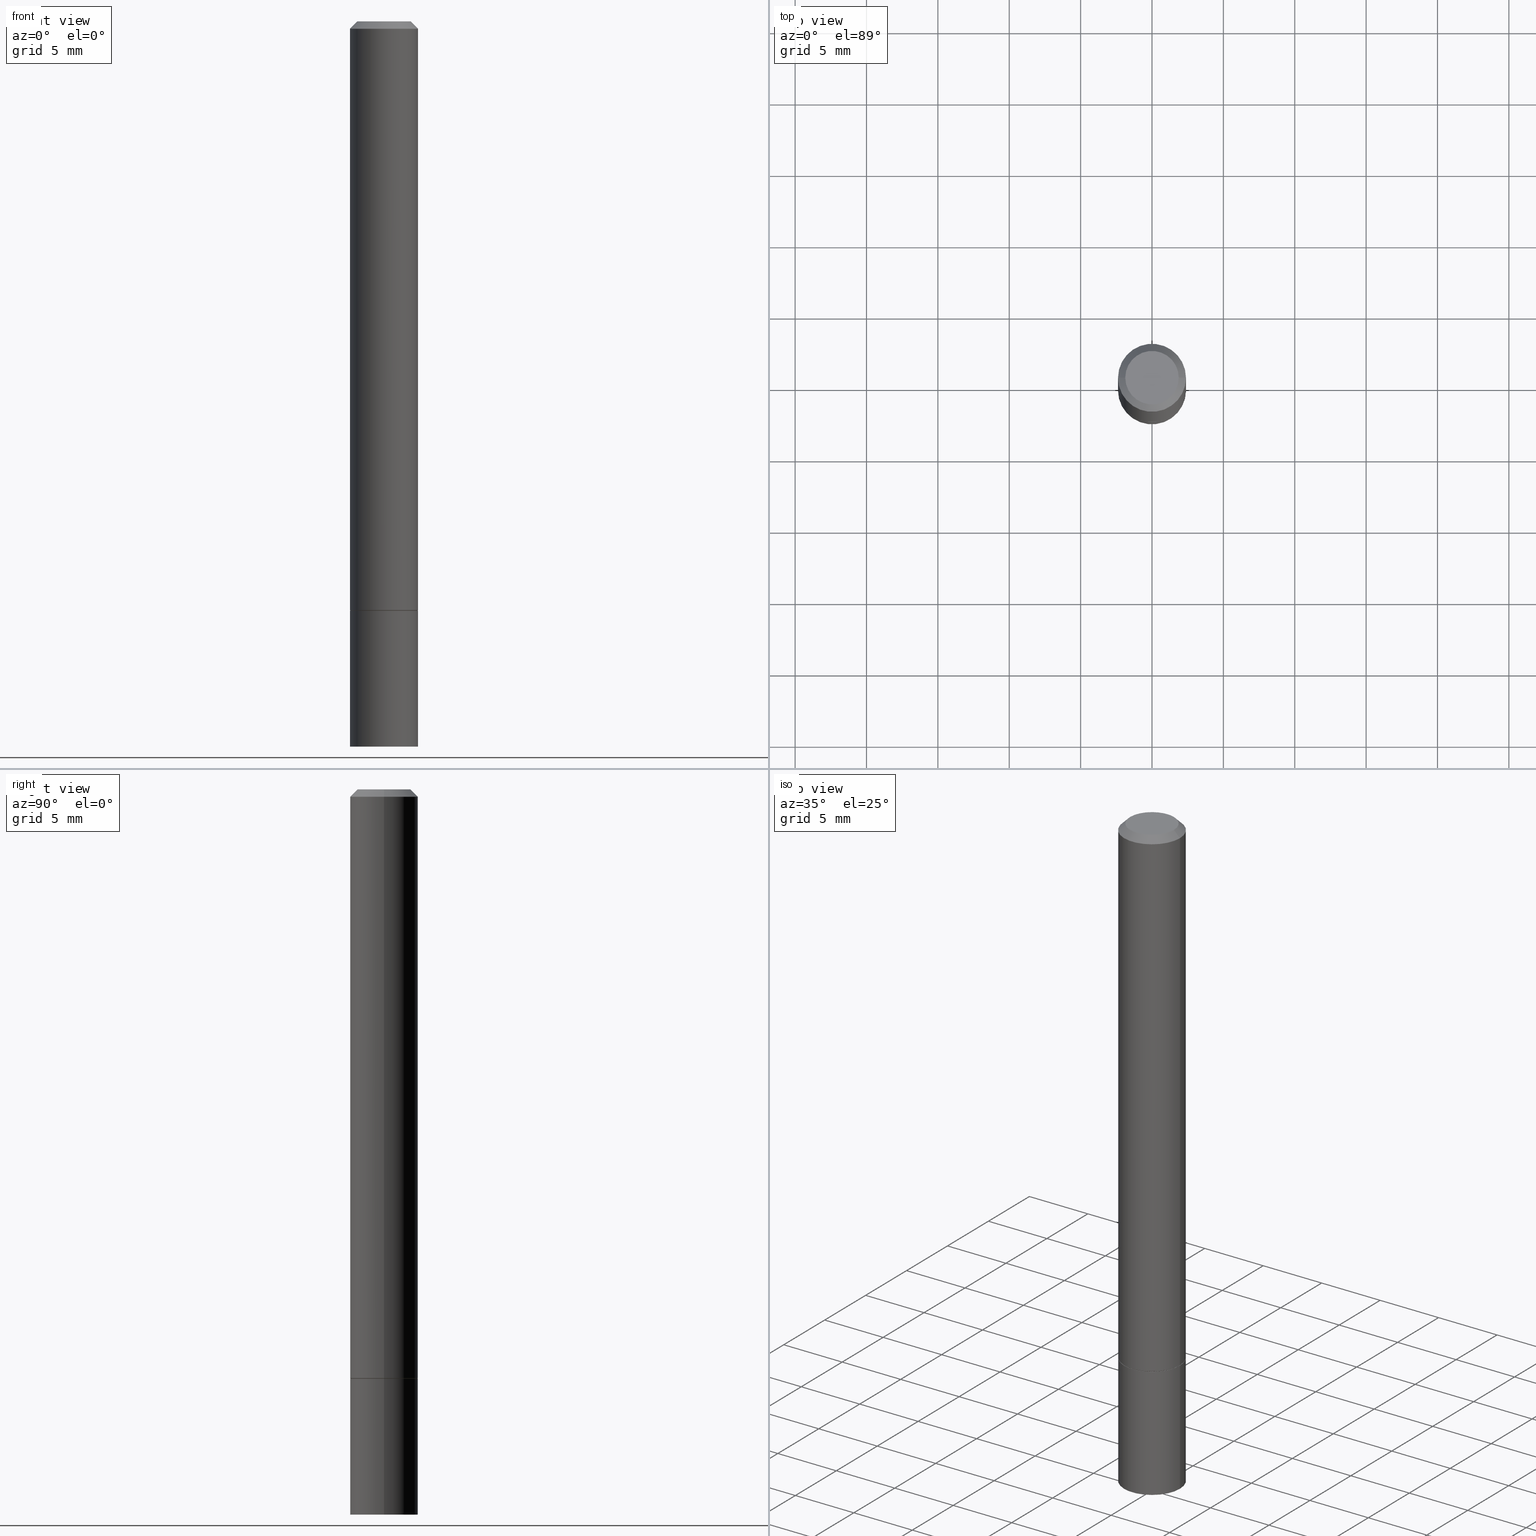
[diagram: canonical four-view strip — front | top / right | iso, engineering-drawing reading convention]
A machine part, canonical four-view strip (front | top / right | iso — engineering-drawing reading convention). The complete STEP part file that produces these views, byte-faithful:
ISO-10303-21;
HEADER;
FILE_DESCRIPTION (( 'STEP AP203' ),
    '1' );
FILE_NAME ('31255.STEP',
    '2024-02-27T12:57:50',
    ( '' ),
    ( '' ),
    'SwSTEP 2.0',
    'SolidWorks 2023',
    '' );
FILE_SCHEMA (( 'CONFIG_CONTROL_DESIGN' ));
ENDSEC;

DATA;
#1 = EDGE_CURVE ( 'NONE', #137, #204, #181, .T. ) ;
#2 = ORIENTED_EDGE ( 'NONE', *, *, #89, .T. ) ;
#3 = EDGE_LOOP ( 'NONE', ( #59, #327 ) ) ;
#4 = EDGE_CURVE ( 'NONE', #81, #285, #289, .T. ) ;
#5 = ORIENTED_EDGE ( 'NONE', *, *, #114, .T. ) ;
#6 = VERTEX_POINT ( 'NONE', #240 ) ;
#7 = FACE_OUTER_BOUND ( 'NONE', #38, .T. ) ;
#8 = AXIS2_PLACEMENT_3D ( 'NONE', #293, #65, #354 ) ;
#9 = APPROVAL_DATE_TIME ( #140, #241 ) ;
#10 = CYLINDRICAL_SURFACE ( 'NONE', #365, 0.09374999999999991673 ) ;
#11 = EDGE_CURVE ( 'NONE', #87, #6, #217, .T. ) ;
#12 = LINE ( 'NONE', #179, #211 ) ;
#13 = ORIENTED_EDGE ( 'NONE', *, *, #320, .T. ) ;
#14 = EDGE_CURVE ( 'NONE', #348, #226, #269, .T. ) ;
#15 = DIRECTION ( 'NONE',  ( 1.000000000000000000, -6.982962677686261189E-15, 0.000000000000000000 ) ) ;
#16 = DIRECTION ( 'NONE',  ( 2.438088387897960049E-29, -3.491481338843145188E-15, -1.000000000000000000 ) ) ;
#17 = CARTESIAN_POINT ( 'NONE',  ( 3.973886810050846409E-29, -5.673657175620110635E-15, -1.624999999999999778 ) ) ;
#18 = CIRCLE ( 'NONE', #193, 0.09274999999999999911 ) ;
#19 = CARTESIAN_POINT ( 'NONE',  ( 3.973886810050846409E-29, -5.673657175620110635E-15, -1.624999999999999778 ) ) ;
#20 = DIMENSIONAL_EXPONENTS ( 1.000000000000000000, 0.000000000000000000, 0.000000000000000000, 0.000000000000000000, 0.000000000000000000, 0.000000000000000000, 0.000000000000000000 ) ;
#21 = CARTESIAN_POINT ( 'NONE',  ( -0.09374999999999981959, 5.848231242562233185E-16, -0.02000000000000001429 ) ) ;
#22 = DIRECTION ( 'NONE',  ( -2.445468806185136597E-29, 3.491481338843145583E-15, 1.000000000000000000 ) ) ;
#23 = CC_DESIGN_PERSON_AND_ORGANIZATION_ASSIGNMENT ( #328, #299, ( #33 ) ) ;
#24 = CIRCLE ( 'NONE', #301, 0.09375000000000001388 ) ;
#25 = ORIENTED_EDGE ( 'NONE', *, *, #104, .T. ) ;
#26 = APPROVAL_STATUS ( 'not_yet_approved' ) ;
#27 = EDGE_LOOP ( 'NONE', ( #206, #108, #312, #58 ) ) ;
#28 = CALENDAR_DATE ( 2024, 27, 2 ) ;
#29 = ORIENTED_EDGE ( 'NONE', *, *, #114, .F. ) ;
#30 = CARTESIAN_POINT ( 'NONE',  ( 0.09374999999999991673, -6.546527510330869125E-16, 4.571415727308685602E-30 ) ) ;
#31 = VERTEX_POINT ( 'NONE', #183 ) ;
#32 = AXIS2_PLACEMENT_3D ( 'NONE', #219, #16, #52 ) ;
#33 = SECURITY_CLASSIFICATION ( '', '', #177 ) ;
#34 = ORIENTED_EDGE ( 'NONE', *, *, #89, .F. ) ;
#35 = PERSON_AND_ORGANIZATION_ROLE ( 'design_supplier' ) ;
#36 = DIRECTION ( 'NONE',  ( -1.000000000000000000, 6.982962677686267499E-15, 0.000000000000000000 ) ) ;
#37 = APPROVAL ( #350, 'UNSPECIFIED' ) ;
#38 = EDGE_LOOP ( 'NONE', ( #168, #69, #288, #147 ) ) ;
#39 = AXIS2_PLACEMENT_3D ( 'NONE', #102, #75, #305 ) ;
#40 = DIRECTION ( 'NONE',  ( 0.7071067811865462405, -7.319954787623251312E-15, -0.7071067811865487940 ) ) ;
#41 = PLANE ( 'NONE',  #344 ) ;
#42 = PERSON_AND_ORGANIZATION_ROLE ( 'creator' ) ;
#43 = CARTESIAN_POINT ( 'NONE',  ( 0.09374999999999981959, -7.130013140679428044E-16, -0.02000000000000001429 ) ) ;
#44 = CIRCLE ( 'NONE', #167, 0.07374999999999988509 ) ;
#45 = DIRECTION ( 'NONE',  ( 1.000000000000000000, -6.982962677686265922E-15, 4.876176775795935232E-29 ) ) ;
#46 = CARTESIAN_POINT ( 'NONE',  ( 0.09375000000000001388, -6.546527510330875041E-16, 4.571415727308690506E-30 ) ) ;
#47 = MANIFOLD_SOLID_BREP ( 'Body-Move/Copy2[1]', #77 ) ;
#48 = ADVANCED_FACE ( 'NONE', ( #151 ), #123, .T. ) ;
#49 = FACE_OUTER_BOUND ( 'NONE', #343, .T. ) ;
#50 = AXIS2_PLACEMENT_3D ( 'NONE', #357, #298, #36 ) ;
#51 = CARTESIAN_POINT ( 'NONE',  ( -0.09375000000000001388, -5.662176111878106581E-15, -2.000000000000000000 ) ) ;
#52 = DIRECTION ( 'NONE',  ( -1.000000000000000000, 6.982962677686265922E-15, -4.876176775795935793E-29 ) ) ;
#53 = ADVANCED_FACE ( 'NONE', ( #125 ), #41, .F. ) ;
#54 = PERSON_AND_ORGANIZATION ( #97, #332 ) ;
#55 = CYLINDRICAL_SURFACE ( 'NONE', #160, 0.09375000000000001388 ) ;
#56 =( GEOMETRIC_REPRESENTATION_CONTEXT ( 3 ) GLOBAL_UNCERTAINTY_ASSIGNED_CONTEXT ( ( #277 ) ) GLOBAL_UNIT_ASSIGNED_CONTEXT ( ( #262, #318, #223 ) ) REPRESENTATION_CONTEXT ( 'NONE', 'WORKASPACE' ) );
#57 = EDGE_LOOP ( 'NONE', ( #144, #228, #233, #176 ) ) ;
#58 = ORIENTED_EDGE ( 'NONE', *, *, #68, .T. ) ;
#59 = ORIENTED_EDGE ( 'NONE', *, *, #11, .T. ) ;
#60 = COORDINATED_UNIVERSAL_TIME_OFFSET ( 5, 0, .BEHIND. ) ;
#61 = AXIS2_PLACEMENT_3D ( 'NONE', #239, #351, #62 ) ;
#62 = DIRECTION ( 'NONE',  ( 1.000000000000000000, -6.982962677686261189E-15, 0.000000000000000000 ) ) ;
#63 = CC_DESIGN_PERSON_AND_ORGANIZATION_ASSIGNMENT ( #310, #347, ( #126 ) ) ;
#64 = CARTESIAN_POINT ( 'NONE',  ( 4.890937612370273194E-29, -6.982962677686291165E-15, -2.000000000000000000 ) ) ;
#65 = DIRECTION ( 'NONE',  ( -2.445468806185136597E-29, 3.491481338843145583E-15, 1.000000000000000000 ) ) ;
#66 = CIRCLE ( 'NONE', #61, 0.09375000000000001388 ) ;
#67 = LOCAL_TIME ( 7, 57, 50.00000000000000000, #286 ) ;
#68 = EDGE_CURVE ( 'NONE', #226, #204, #101, .T. ) ;
#69 = ORIENTED_EDGE ( 'NONE', *, *, #4, .T. ) ;
#70 = DIRECTION ( 'NONE',  ( -2.445468806185136597E-29, 3.491481338843145583E-15, 1.000000000000000000 ) ) ;
#71 = DIRECTION ( 'NONE',  ( -2.445468806185136597E-29, 3.491481338843145583E-15, 1.000000000000000000 ) ) ;
#72 = AXIS2_PLACEMENT_3D ( 'NONE', #112, #195, #175 ) ;
#73 = CC_DESIGN_APPROVAL ( #241, ( #132 ) ) ;
#74 = DIRECTION ( 'NONE',  ( 1.000000000000000000, -6.982962677686261977E-15, 0.000000000000000000 ) ) ;
#75 = DIRECTION ( 'NONE',  ( 2.438088387897960049E-29, -3.491481338843145188E-15, -1.000000000000000000 ) ) ;
#76 = LINE ( 'NONE', #302, #197 ) ;
#77 = CLOSED_SHELL ( 'NONE', ( #180, #279, #155, #362 ) ) ;
#78 = LINE ( 'NONE', #30, #295 ) ;
#79 = LOCAL_TIME ( 7, 57, 50.00000000000000000, #325 ) ;
#80 = EDGE_CURVE ( 'NONE', #170, #283, #18, .T. ) ;
#81 = VERTEX_POINT ( 'NONE', #207 ) ;
#82 = VECTOR ( 'NONE', #268, 39.37007874015748143 ) ;
#83 = DATE_AND_TIME ( #342, #67 ) ;
#84 = AXIS2_PLACEMENT_3D ( 'NONE', #336, #191, #306 ) ;
#85 = EDGE_LOOP ( 'NONE', ( #34, #29 ) ) ;
#86 = FACE_OUTER_BOUND ( 'NONE', #113, .T. ) ;
#87 = VERTEX_POINT ( 'NONE', #178 ) ;
#88 = ORIENTED_EDGE ( 'NONE', *, *, #331, .T. ) ;
#89 = EDGE_CURVE ( 'NONE', #31, #322, #313, .T. ) ;
#90 = CIRCLE ( 'NONE', #84, 0.09374999999999981959 ) ;
#91 = DIRECTION ( 'NONE',  ( -2.445468806185136597E-29, 3.491481338843145583E-15, 1.000000000000000000 ) ) ;
#92 = PERSON_AND_ORGANIZATION ( #97, #332 ) ;
#93 = ORIENTED_EDGE ( 'NONE', *, *, #185, .F. ) ;
#94 = CALENDAR_DATE ( 2024, 27, 2 ) ;
#95 = LINE ( 'NONE', #210, #266 ) ;
#96 = CARTESIAN_POINT ( 'NONE',  ( 3.973886810050846970E-29, -5.673657175620112213E-15, -1.625000000000000000 ) ) ;
#97 = PERSON ( 'UNSPECIFIED', 'UNSPECIFIED', 'UNSPECIFIED', ('UNSPECIFIED'), ('UNSPECIFIED'), ('UNSPECIFIED') ) ;
#98 = DIRECTION ( 'NONE',  ( -1.000000000000000000, 6.982962677686265922E-15, -4.876176775795935793E-29 ) ) ;
#99 = DIRECTION ( 'NONE',  ( -2.445468806185136597E-29, 3.491481338843145583E-15, 1.000000000000000000 ) ) ;
#100 = ADVANCED_FACE ( 'NONE', ( #7 ), #10, .T. ) ;
#101 = CIRCLE ( 'NONE', #272, 0.09374999999999981959 ) ;
#102 = CARTESIAN_POINT ( 'NONE',  ( 6.546527510331364135E-16, 0.09374999999999301947, -2.000000000000000444 ) ) ;
#103 = LINE ( 'NONE', #134, #116 ) ;
#104 = EDGE_CURVE ( 'NONE', #81, #226, #12, .T. ) ;
#105 = CARTESIAN_POINT ( 'NONE',  ( 0.09375000000000001388, -6.324818445314355132E-15, -1.623999999999999888 ) ) ;
#106 = CARTESIAN_POINT ( 'NONE',  ( 0.000000000000000000, 0.000000000000000000, 0.000000000000000000 ) ) ;
#107 = MECHANICAL_CONTEXT ( 'NONE', #280, 'mechanical' ) ;
#108 = ORIENTED_EDGE ( 'NONE', *, *, #248, .F. ) ;
#109 = ORIENTED_EDGE ( 'NONE', *, *, #11, .F. ) ;
#110 = CONICAL_SURFACE ( 'NONE', #8, 0.09274999999999999911, 0.7853981633975507526 ) ;
#111 = ORIENTED_EDGE ( 'NONE', *, *, #258, .F. ) ;
#112 = CARTESIAN_POINT ( 'NONE',  ( 0.000000000000000000, 0.000000000000000000, 0.000000000000000000 ) ) ;
#113 = EDGE_LOOP ( 'NONE', ( #111, #5, #319, #255 ) ) ;
#114 = EDGE_CURVE ( 'NONE', #322, #31, #66, .T. ) ;
#115 = DIRECTION ( 'NONE',  ( -2.445468806185136597E-29, 3.491481338843145583E-15, 1.000000000000000000 ) ) ;
#116 = VECTOR ( 'NONE', #246, 39.37007874015748143 ) ;
#117 = DIRECTION ( 'NONE',  ( -2.445468806185136877E-29, 3.491481338843145188E-15, 1.000000000000000000 ) ) ;
#118 = PERSON_AND_ORGANIZATION ( #97, #332 ) ;
#119 = DIRECTION ( 'NONE',  ( 1.000000000000000000, -6.982962677686267499E-15, 0.000000000000000000 ) ) ;
#120 = ADVANCED_FACE ( 'NONE', ( #271 ), #110, .T. ) ;
#121 = DIRECTION ( 'NONE',  ( -0.7071067811866199593, 7.493145998870616062E-15, 0.7071067811864750752 ) ) ;
#122 = AXIS2_PLACEMENT_3D ( 'NONE', #324, #296, #236 ) ;
#123 = CONICAL_SURFACE ( 'NONE', #50, 0.09374999999999981959, 0.7853981633974465026 ) ;
#124 = LOCAL_TIME ( 7, 57, 50.00000000000000000, #60 ) ;
#125 = FACE_OUTER_BOUND ( 'NONE', #256, .T. ) ;
#126 = PRODUCT ( '31255', '31255', '', ( #107 ) ) ;
#127 = EDGE_CURVE ( 'NONE', #170, #81, #95, .T. ) ;
#128 = DIRECTION ( 'NONE',  ( 1.000000000000000000, -6.982962677686265922E-15, 4.876176775795935232E-29 ) ) ;
#129 = APPLICATION_CONTEXT ( 'configuration controlled 3d designs of mechanical parts and assemblies' ) ;
#130 = FACE_OUTER_BOUND ( 'NONE', #202, .T. ) ;
#131 = VECTOR ( 'NONE', #253, 39.37007874015748143 ) ;
#132 = PRODUCT_DEFINITION_FORMATION_WITH_SPECIFIED_SOURCE ( 'ANY', '', #126, .NOT_KNOWN. ) ;
#133 = DIRECTION ( 'NONE',  ( -2.438088387897960049E-29, 3.491481338843145188E-15, 1.000000000000000000 ) ) ;
#134 = CARTESIAN_POINT ( 'NONE',  ( -0.09375000000000001388, 6.661338147750940229E-16, -4.611501647113973995E-30 ) ) ;
#135 = CARTESIAN_POINT ( 'NONE',  ( -0.09274999999999999911, -5.009330333854396106E-15, -1.624999999999999778 ) ) ;
#136 = APPLICATION_PROTOCOL_DEFINITION ( 'international standard', 'config_control_design', 1994, #129 ) ;
#137 = VERTEX_POINT ( 'NONE', #214 ) ;
#138 = DATE_AND_TIME ( #311, #124 ) ;
#139 = ORIENTED_EDGE ( 'NONE', *, *, #320, .F. ) ;
#140 = DATE_AND_TIME ( #28, #366 ) ;
#141 = ORIENTED_EDGE ( 'NONE', *, *, #173, .F. ) ;
#142 = AXIS2_PLACEMENT_3D ( 'NONE', #17, #99, #216 ) ;
#143 = LOCAL_TIME ( 7, 57, 50.00000000000000000, #208 ) ;
#144 = ORIENTED_EDGE ( 'NONE', *, *, #173, .T. ) ;
#145 = EDGE_CURVE ( 'NONE', #6, #87, #218, .T. ) ;
#146 = DIRECTION ( 'NONE',  ( 1.000000000000000000, -6.982962677686265922E-15, 4.876176775795935793E-29 ) ) ;
#147 = ORIENTED_EDGE ( 'NONE', *, *, #68, .F. ) ;
#148 = DATE_AND_TIME ( #353, #143 ) ;
#149 = DIRECTION ( 'NONE',  ( -2.445468806185136597E-29, 3.491481338843145583E-15, 1.000000000000000000 ) ) ;
#150 = DIRECTION ( 'NONE',  ( -2.445468806185136597E-29, 3.491481338843145583E-15, 1.000000000000000000 ) ) ;
#151 = FACE_OUTER_BOUND ( 'NONE', #261, .T. ) ;
#152 = DIRECTION ( 'NONE',  ( -2.445468806185136597E-29, 3.491481338843145583E-15, 1.000000000000000000 ) ) ;
#153 = ORIENTED_EDGE ( 'NONE', *, *, #258, .T. ) ;
#154 = AXIS2_PLACEMENT_3D ( 'NONE', #358, #22, #74 ) ;
#155 = ADVANCED_FACE ( 'NONE', ( #300 ), #309, .F. ) ;
#156 = CARTESIAN_POINT ( 'NONE',  ( 0.000000000000000000, 0.000000000000000000, 0.000000000000000000 ) ) ;
#157 = PRODUCT_DEFINITION_SHAPE ( 'NONE', 'NONE',  #352 ) ;
#158 = FACE_OUTER_BOUND ( 'NONE', #346, .T. ) ;
#159 = CYLINDRICAL_SURFACE ( 'NONE', #321, 0.09375000000000001388 ) ;
#160 = AXIS2_PLACEMENT_3D ( 'NONE', #284, #282, #146 ) ;
#161 = APPROVAL_PERSON_ORGANIZATION ( #225, #270, #340 ) ;
#162 = CARTESIAN_POINT ( 'NONE',  ( 3.971441341244661927E-29, -5.670165694281268417E-15, -1.623999999999999888 ) ) ;
#163 = ADVANCED_FACE ( 'NONE', ( #189 ), #235, .T. ) ;
#164 = LINE ( 'NONE', #46, #131 ) ;
#165 = APPROVAL_STATUS ( 'not_yet_approved' ) ;
#166 = ORIENTED_EDGE ( 'NONE', *, *, #127, .F. ) ;
#167 = AXIS2_PLACEMENT_3D ( 'NONE', #186, #304, #45 ) ;
#168 = ORIENTED_EDGE ( 'NONE', *, *, #104, .F. ) ;
#169 = COORDINATED_UNIVERSAL_TIME_OFFSET ( 5, 0, .BEHIND. ) ;
#170 = VERTEX_POINT ( 'NONE', #135 ) ;
#171 = DIRECTION ( 'NONE',  ( -2.445468806185136877E-29, 3.491481338843145188E-15, 1.000000000000000000 ) ) ;
#172 = ORIENTED_EDGE ( 'NONE', *, *, #230, .T. ) ;
#173 = EDGE_CURVE ( 'NONE', #283, #170, #187, .T. ) ;
#174 = AXIS2_PLACEMENT_3D ( 'NONE', #329, #70, #184 ) ;
#175 = DIRECTION ( 'NONE',  ( 1.000000000000000000, 0.000000000000000000, 0.000000000000000000 ) ) ;
#176 = ORIENTED_EDGE ( 'NONE', *, *, #190, .F. ) ;
#177 = SECURITY_CLASSIFICATION_LEVEL ( 'unclassified' ) ;
#178 = CARTESIAN_POINT ( 'NONE',  ( 0.09375000000000001388, -6.328309926653198928E-15, -1.625000000000000000 ) ) ;
#179 = CARTESIAN_POINT ( 'NONE',  ( -0.09374999999999991673, 6.661338147750933326E-16, -4.611501647113969791E-30 ) ) ;
#180 = ADVANCED_FACE ( 'NONE', ( #130 ), #159, .T. ) ;
#181 = LINE ( 'NONE', #43, #234 ) ;
#182 = APPROVAL_ROLE ( '' ) ;
#183 = CARTESIAN_POINT ( 'NONE',  ( 0.09375000000000001388, -7.637615428719378669E-15, -2.000000000000000000 ) ) ;
#184 = DIRECTION ( 'NONE',  ( 1.000000000000000000, -6.982962677686261189E-15, 0.000000000000000000 ) ) ;
#185 = EDGE_CURVE ( 'NONE', #31, #87, #164, .T. ) ;
#186 = CARTESIAN_POINT ( 'NONE',  ( 0.000000000000000000, 0.000000000000000000, 0.000000000000000000 ) ) ;
#187 = CIRCLE ( 'NONE', #142, 0.09274999999999999911 ) ;
#188 = FACE_OUTER_BOUND ( 'NONE', #27, .T. ) ;
#189 = FACE_OUTER_BOUND ( 'NONE', #57, .T. ) ;
#190 = EDGE_CURVE ( 'NONE', #283, #285, #76, .T. ) ;
#191 = DIRECTION ( 'NONE',  ( -2.445468806185136597E-29, 3.491481338843145583E-15, 1.000000000000000000 ) ) ;
#192 = AXIS2_PLACEMENT_3D ( 'NONE', #106, #71, #281 ) ;
#193 = AXIS2_PLACEMENT_3D ( 'NONE', #294, #91, #209 ) ;
#194 = CARTESIAN_POINT ( 'NONE',  ( -0.07374999999999988509, 5.499083108677923596E-16, -3.723527850031187664E-30 ) ) ;
#195 = DIRECTION ( 'NONE',  ( 0.000000000000000000, 0.000000000000000000, 1.000000000000000000 ) ) ;
#196 = ORIENTED_EDGE ( 'NONE', *, *, #190, .T. ) ;
#197 = VECTOR ( 'NONE', #338, 39.37007874015748143 ) ;
#198 = CC_DESIGN_SECURITY_CLASSIFICATION ( #33, ( #132 ) ) ;
#199 = PERSON_AND_ORGANIZATION ( #97, #332 ) ;
#200 = ORIENTED_EDGE ( 'NONE', *, *, #14, .F. ) ;
#201 = ADVANCED_FACE ( 'NONE', ( #188 ), #308, .T. ) ;
#202 = EDGE_LOOP ( 'NONE', ( #2, #153, #109, #93 ) ) ;
#203 =( LENGTH_UNIT ( ) NAMED_UNIT ( * ) SI_UNIT ( $, .METRE. ) );
#204 = VERTEX_POINT ( 'NONE', #274 ) ;
#205 = CIRCLE ( 'NONE', #259, 0.07374999999999988509 ) ;
#206 = ORIENTED_EDGE ( 'NONE', *, *, #1, .F. ) ;
#207 = CARTESIAN_POINT ( 'NONE',  ( -0.09375000000000001388, -2.203863845753969567E-15, -1.623999999999999888 ) ) ;
#208 = COORDINATED_UNIVERSAL_TIME_OFFSET ( 5, 0, .BEHIND. ) ;
#209 = DIRECTION ( 'NONE',  ( 1.000000000000000000, -6.982962677686261977E-15, 0.000000000000000000 ) ) ;
#210 = CARTESIAN_POINT ( 'NONE',  ( -0.09274999999999999911, -5.014628788202618508E-15, -1.624999999999999778 ) ) ;
#211 = VECTOR ( 'NONE', #117, 39.37007874015748143 ) ;
#212 = PERSON_AND_ORGANIZATION ( #97, #332 ) ;
#213 = ADVANCED_FACE ( 'NONE', ( #158 ), #364, .T. ) ;
#214 = CARTESIAN_POINT ( 'NONE',  ( 0.07374999999999988509, -6.094815207017961198E-16, 3.931526600461598749E-30 ) ) ;
#215 = DIRECTION ( 'NONE',  ( 1.000000000000000000, -6.982962677686266711E-15, 4.876176775795935793E-29 ) ) ;
#216 = DIRECTION ( 'NONE',  ( 1.000000000000000000, -6.982962677686261977E-15, 0.000000000000000000 ) ) ;
#217 = CIRCLE ( 'NONE', #247, 0.09375000000000001388 ) ;
#218 = CIRCLE ( 'NONE', #174, 0.09375000000000001388 ) ;
#219 = CARTESIAN_POINT ( 'NONE',  ( 6.546527510331273416E-16, 0.09374999999999433786, -1.625000000000000222 ) ) ;
#220 = DIRECTION ( 'NONE',  ( 1.000000000000000000, -6.982962677686265922E-15, 4.876176775795935793E-29 ) ) ;
#221 = DESIGN_CONTEXT ( 'detailed design', #129, 'design' ) ;
#222 = DIRECTION ( 'NONE',  ( -2.445468806185136597E-29, 3.491481338843145583E-15, 1.000000000000000000 ) ) ;
#223 =( NAMED_UNIT ( * ) SI_UNIT ( $, .STERADIAN. ) SOLID_ANGLE_UNIT ( ) );
#224 = CC_DESIGN_PERSON_AND_ORGANIZATION_ASSIGNMENT ( #92, #35, ( #132 ) ) ;
#225 = PERSON_AND_ORGANIZATION ( #97, #332 ) ;
#226 = VERTEX_POINT ( 'NONE', #21 ) ;
#227 = APPROVAL_DATE_TIME ( #138, #270 ) ;
#228 = ORIENTED_EDGE ( 'NONE', *, *, #127, .T. ) ;
#229 = ORIENTED_EDGE ( 'NONE', *, *, #1, .T. ) ;
#230 = EDGE_CURVE ( 'NONE', #137, #348, #205, .T. ) ;
#231 = DATE_TIME_ROLE ( 'creation_date' ) ;
#232 = ORIENTED_EDGE ( 'NONE', *, *, #4, .F. ) ;
#233 = ORIENTED_EDGE ( 'NONE', *, *, #331, .F. ) ;
#234 = VECTOR ( 'NONE', #40, 39.37007874015748143 ) ;
#235 = CONICAL_SURFACE ( 'NONE', #154, 0.09274999999999999911, 0.7853981633975507526 ) ;
#236 = DIRECTION ( 'NONE',  ( 1.000000000000000000, -6.982962677686261189E-15, 0.000000000000000000 ) ) ;
#237 = PRODUCT_RELATED_PRODUCT_CATEGORY ( 'detail', '', ( #126 ) ) ;
#238 = DATE_TIME_ROLE ( 'classification_date' ) ;
#239 = CARTESIAN_POINT ( 'NONE',  ( 4.890937612370273194E-29, -6.982962677686291165E-15, -2.000000000000000000 ) ) ;
#240 = CARTESIAN_POINT ( 'NONE',  ( -0.09375000000000001388, -5.662176111878106581E-15, -1.625000000000000000 ) ) ;
#241 = APPROVAL ( #165, 'UNSPECIFIED' ) ;
#242 = ORIENTED_EDGE ( 'NONE', *, *, #248, .T. ) ;
#243 = APPROVAL_PERSON_ORGANIZATION ( #199, #241, #315 ) ;
#244 = DIRECTION ( 'NONE',  ( 2.438088387897960049E-29, -3.491481338843145188E-15, -1.000000000000000000 ) ) ;
#245 = CARTESIAN_POINT ( 'NONE',  ( 4.890937612370275786E-31, -6.982962677686296539E-17, -0.02000000000000001429 ) ) ;
#246 = DIRECTION ( 'NONE',  ( -2.445468806185136877E-29, 3.491481338843145188E-15, 1.000000000000000000 ) ) ;
#247 = AXIS2_PLACEMENT_3D ( 'NONE', #96, #150, #15 ) ;
#248 = EDGE_CURVE ( 'NONE', #348, #137, #44, .T. ) ;
#249 = AXIS2_PLACEMENT_3D ( 'NONE', #245, #330, #333 ) ;
#250 = CARTESIAN_POINT ( 'NONE',  ( 0.09274999999999999911, -6.321326963975512125E-15, -1.624999999999999778 ) ) ;
#251 = DIRECTION ( 'NONE',  ( -2.445468806185136597E-29, 3.491481338843145583E-15, 1.000000000000000000 ) ) ;
#252 = ADVANCED_BREP_SHAPE_REPRESENTATION ( '31255', ( #47, #297, #72 ), #56 ) ;
#253 = DIRECTION ( 'NONE',  ( -2.445468806185136877E-29, 3.491481338843145188E-15, 1.000000000000000000 ) ) ;
#254 = AXIS2_PLACEMENT_3D ( 'NONE', #19, #133, #220 ) ;
#255 = ORIENTED_EDGE ( 'NONE', *, *, #145, .F. ) ;
#256 = EDGE_LOOP ( 'NONE', ( #242, #172 ) ) ;
#257 = ORIENTED_EDGE ( 'NONE', *, *, #356, .F. ) ;
#258 = EDGE_CURVE ( 'NONE', #322, #6, #103, .T. ) ;
#259 = AXIS2_PLACEMENT_3D ( 'NONE', #156, #335, #128 ) ;
#260 = PERSON_AND_ORGANIZATION_ROLE ( 'creator' ) ;
#261 = EDGE_LOOP ( 'NONE', ( #316, #229, #13, #200 ) ) ;
#262 =( CONVERSION_BASED_UNIT ( 'INCH', #345 ) LENGTH_UNIT ( ) NAMED_UNIT ( #20 ) );
#263 = CC_DESIGN_DATE_AND_TIME_ASSIGNMENT ( #148, #238, ( #33 ) ) ;
#264 = APPROVAL_DATE_TIME ( #292, #37 ) ;
#265 = DIRECTION ( 'NONE',  ( 1.000000000000000000, -6.982962677686261189E-15, 0.000000000000000000 ) ) ;
#266 = VECTOR ( 'NONE', #121, 39.37007874015748143 ) ;
#267 = CC_DESIGN_APPROVAL ( #270, ( #352 ) ) ;
#268 = DIRECTION ( 'NONE',  ( -0.7071067811865462405, 2.468850131082243256E-15, -0.7071067811865487940 ) ) ;
#269 = LINE ( 'NONE', #349, #82 ) ;
#270 = APPROVAL ( #26, 'UNSPECIFIED' ) ;
#271 = FACE_OUTER_BOUND ( 'NONE', #290, .T. ) ;
#272 = AXIS2_PLACEMENT_3D ( 'NONE', #355, #152, #119 ) ;
#273 = CARTESIAN_POINT ( 'NONE',  ( 5.149934974793613022E-16, 0.07374999999999988509, -2.574967487396815385E-16 ) ) ;
#274 = CARTESIAN_POINT ( 'NONE',  ( 0.09374999999999981959, -7.130013140679428044E-16, -0.02000000000000001429 ) ) ;
#275 = CARTESIAN_POINT ( 'NONE',  ( 0.000000000000000000, 0.000000000000000000, 0.000000000000000000 ) ) ;
#276 = PLANE ( 'NONE',  #254 ) ;
#277 = UNCERTAINTY_MEASURE_WITH_UNIT (LENGTH_MEASURE( 1.000000000000000082E-05 ), #262, 'distance_accuracy_value', 'NONE');
#278 = FACE_OUTER_BOUND ( 'NONE', #85, .T. ) ;
#279 = ADVANCED_FACE ( 'NONE', ( #278 ), #360, .T. ) ;
#280 = APPLICATION_CONTEXT ( 'configuration controlled 3d designs of mechanical parts and assemblies' ) ;
#281 = DIRECTION ( 'NONE',  ( 1.000000000000000000, -6.982962677686266711E-15, 4.876176775795935793E-29 ) ) ;
#282 = DIRECTION ( 'NONE',  ( -2.445468806185136597E-29, 3.491481338843145583E-15, 1.000000000000000000 ) ) ;
#283 = VERTEX_POINT ( 'NONE', #250 ) ;
#284 = CARTESIAN_POINT ( 'NONE',  ( 0.000000000000000000, 0.000000000000000000, 0.000000000000000000 ) ) ;
#285 = VERTEX_POINT ( 'NONE', #105 ) ;
#286 = COORDINATED_UNIVERSAL_TIME_OFFSET ( 5, 0, .BEHIND. ) ;
#287 = APPLICATION_PROTOCOL_DEFINITION ( 'international standard', 'config_control_design', 1994, #280 ) ;
#288 = ORIENTED_EDGE ( 'NONE', *, *, #356, .T. ) ;
#289 = CIRCLE ( 'NONE', #122, 0.09375000000000001388 ) ;
#290 = EDGE_LOOP ( 'NONE', ( #166, #341, #196, #232 ) ) ;
#291 = CC_DESIGN_PERSON_AND_ORGANIZATION_ASSIGNMENT ( #212, #42, ( #132 ) ) ;
#292 = DATE_AND_TIME ( #94, #79 ) ;
#293 = CARTESIAN_POINT ( 'NONE',  ( 3.973886810050846409E-29, -5.673657175620110635E-15, -1.624999999999999778 ) ) ;
#294 = CARTESIAN_POINT ( 'NONE',  ( 3.973886810050846409E-29, -5.673657175620110635E-15, -1.624999999999999778 ) ) ;
#295 = VECTOR ( 'NONE', #171, 39.37007874015748143 ) ;
#296 = DIRECTION ( 'NONE',  ( -2.445468806185136597E-29, 3.491481338843145583E-15, 1.000000000000000000 ) ) ;
#297 = MANIFOLD_SOLID_BREP ( 'Body-Move/Copy2[2]', #337 ) ;
#298 = DIRECTION ( 'NONE',  ( 2.445468806185136597E-29, -3.491481338843145583E-15, -1.000000000000000000 ) ) ;
#299 = PERSON_AND_ORGANIZATION_ROLE ( 'classification_officer' ) ;
#300 = FACE_OUTER_BOUND ( 'NONE', #3, .T. ) ;
#301 = AXIS2_PLACEMENT_3D ( 'NONE', #162, #251, #363 ) ;
#302 = CARTESIAN_POINT ( 'NONE',  ( 0.09274999999999999911, -6.321326963975512125E-15, -1.624999999999999778 ) ) ;
#303 = ADVANCED_FACE ( 'NONE', ( #49 ), #276, .F. ) ;
#304 = DIRECTION ( 'NONE',  ( -2.445468806185136597E-29, 3.491481338843145583E-15, 1.000000000000000000 ) ) ;
#305 = DIRECTION ( 'NONE',  ( -1.000000000000000000, 6.982962677686265922E-15, -4.876176775795935793E-29 ) ) ;
#306 = DIRECTION ( 'NONE',  ( 1.000000000000000000, -6.982962677686267499E-15, 0.000000000000000000 ) ) ;
#307 = CC_DESIGN_DATE_AND_TIME_ASSIGNMENT ( #83, #231, ( #352 ) ) ;
#308 = CONICAL_SURFACE ( 'NONE', #249, 0.09374999999999981959, 0.7853981633974465026 ) ;
#309 = PLANE ( 'NONE',  #32 ) ;
#310 = PERSON_AND_ORGANIZATION ( #97, #332 ) ;
#311 = CALENDAR_DATE ( 2024, 27, 2 ) ;
#312 = ORIENTED_EDGE ( 'NONE', *, *, #14, .T. ) ;
#313 = CIRCLE ( 'NONE', #359, 0.09375000000000001388 ) ;
#314 = CC_DESIGN_PERSON_AND_ORGANIZATION_ASSIGNMENT ( #54, #260, ( #352 ) ) ;
#315 = APPROVAL_ROLE ( '' ) ;
#316 = ORIENTED_EDGE ( 'NONE', *, *, #230, .F. ) ;
#317 = ORIENTED_EDGE ( 'NONE', *, *, #80, .F. ) ;
#318 =( NAMED_UNIT ( * ) PLANE_ANGLE_UNIT ( ) SI_UNIT ( $, .RADIAN. ) );
#319 = ORIENTED_EDGE ( 'NONE', *, *, #185, .T. ) ;
#320 = EDGE_CURVE ( 'NONE', #204, #226, #90, .T. ) ;
#321 = AXIS2_PLACEMENT_3D ( 'NONE', #275, #222, #361 ) ;
#322 = VERTEX_POINT ( 'NONE', #51 ) ;
#323 = SHAPE_DEFINITION_REPRESENTATION ( #157, #252 ) ;
#324 = CARTESIAN_POINT ( 'NONE',  ( 3.971441341244661927E-29, -5.670165694281268417E-15, -1.623999999999999888 ) ) ;
#325 = COORDINATED_UNIVERSAL_TIME_OFFSET ( 5, 0, .BEHIND. ) ;
#326 = CARTESIAN_POINT ( 'NONE',  ( 0.000000000000000000, 0.000000000000000000, 0.000000000000000000 ) ) ;
#327 = ORIENTED_EDGE ( 'NONE', *, *, #145, .T. ) ;
#328 = PERSON_AND_ORGANIZATION ( #97, #332 ) ;
#329 = CARTESIAN_POINT ( 'NONE',  ( 3.973886810050846970E-29, -5.673657175620112213E-15, -1.625000000000000000 ) ) ;
#330 = DIRECTION ( 'NONE',  ( 2.445468806185136597E-29, -3.491481338843145583E-15, -1.000000000000000000 ) ) ;
#331 = EDGE_CURVE ( 'NONE', #285, #81, #24, .T. ) ;
#332 = ORGANIZATION ( 'UNSPECIFIED', 'UNSPECIFIED', '' ) ;
#333 = DIRECTION ( 'NONE',  ( -1.000000000000000000, 6.982962677686267499E-15, 0.000000000000000000 ) ) ;
#334 = CC_DESIGN_APPROVAL ( #37, ( #33 ) ) ;
#335 = DIRECTION ( 'NONE',  ( -2.445468806185136597E-29, 3.491481338843145583E-15, 1.000000000000000000 ) ) ;
#336 = CARTESIAN_POINT ( 'NONE',  ( 4.890937612370275786E-31, -6.982962677686296539E-17, -0.02000000000000001429 ) ) ;
#337 = CLOSED_SHELL ( 'NONE', ( #163, #213, #48, #201, #100, #120, #303, #53 ) ) ;
#338 = DIRECTION ( 'NONE',  ( 0.7071067811866199593, -2.468850131083015945E-15, 0.7071067811864750752 ) ) ;
#339 = APPROVAL_PERSON_ORGANIZATION ( #118, #37, #182 ) ;
#340 = APPROVAL_ROLE ( '' ) ;
#341 = ORIENTED_EDGE ( 'NONE', *, *, #80, .T. ) ;
#342 = CALENDAR_DATE ( 2024, 27, 2 ) ;
#343 = EDGE_LOOP ( 'NONE', ( #141, #317 ) ) ;
#344 = AXIS2_PLACEMENT_3D ( 'NONE', #273, #244, #98 ) ;
#345 = LENGTH_MEASURE_WITH_UNIT ( LENGTH_MEASURE( 0.02539999999999999897 ), #203 );
#346 = EDGE_LOOP ( 'NONE', ( #88, #25, #139, #257 ) ) ;
#347 = PERSON_AND_ORGANIZATION_ROLE ( 'design_owner' ) ;
#348 = VERTEX_POINT ( 'NONE', #194 ) ;
#349 = CARTESIAN_POINT ( 'NONE',  ( -0.09374999999999981959, 5.848231242562233185E-16, -0.02000000000000001429 ) ) ;
#350 = APPROVAL_STATUS ( 'not_yet_approved' ) ;
#351 = DIRECTION ( 'NONE',  ( -2.445468806185136597E-29, 3.491481338843145583E-15, 1.000000000000000000 ) ) ;
#352 = PRODUCT_DEFINITION ( 'UNKNOWN', '', #132, #221 ) ;
#353 = CALENDAR_DATE ( 2024, 27, 2 ) ;
#354 = DIRECTION ( 'NONE',  ( 1.000000000000000000, -6.982962677686261977E-15, 0.000000000000000000 ) ) ;
#355 = CARTESIAN_POINT ( 'NONE',  ( 4.890937612370275786E-31, -6.982962677686296539E-17, -0.02000000000000001429 ) ) ;
#356 = EDGE_CURVE ( 'NONE', #285, #204, #78, .T. ) ;
#357 = CARTESIAN_POINT ( 'NONE',  ( 4.890937612370275786E-31, -6.982962677686296539E-17, -0.02000000000000001429 ) ) ;
#358 = CARTESIAN_POINT ( 'NONE',  ( 3.973886810050846409E-29, -5.673657175620110635E-15, -1.624999999999999778 ) ) ;
#359 = AXIS2_PLACEMENT_3D ( 'NONE', #64, #149, #265 ) ;
#360 = PLANE ( 'NONE',  #39 ) ;
#361 = DIRECTION ( 'NONE',  ( 1.000000000000000000, -6.982962677686265922E-15, 4.876176775795935793E-29 ) ) ;
#362 = ADVANCED_FACE ( 'NONE', ( #86 ), #55, .T. ) ;
#363 = DIRECTION ( 'NONE',  ( 1.000000000000000000, -6.982962677686261189E-15, 0.000000000000000000 ) ) ;
#364 = CYLINDRICAL_SURFACE ( 'NONE', #192, 0.09374999999999991673 ) ;
#365 = AXIS2_PLACEMENT_3D ( 'NONE', #326, #115, #215 ) ;
#366 = LOCAL_TIME ( 7, 57, 50.00000000000000000, #169 ) ;
ENDSEC;
END-ISO-10303-21;
